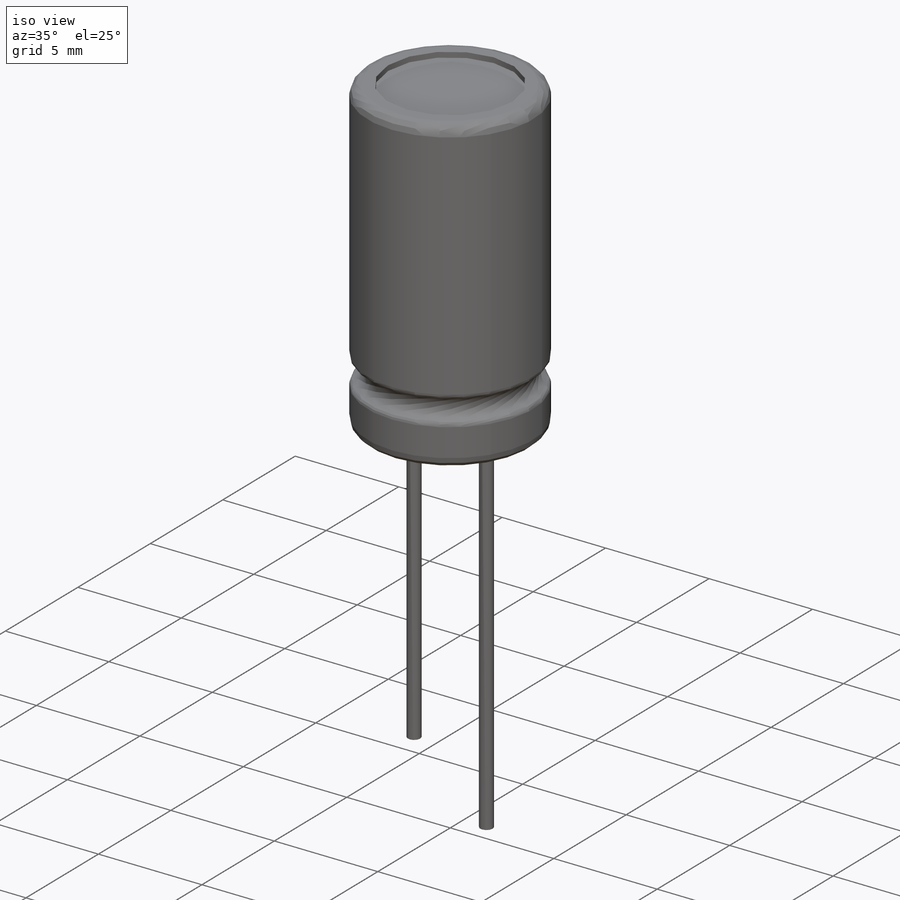
[diagram: iso view]
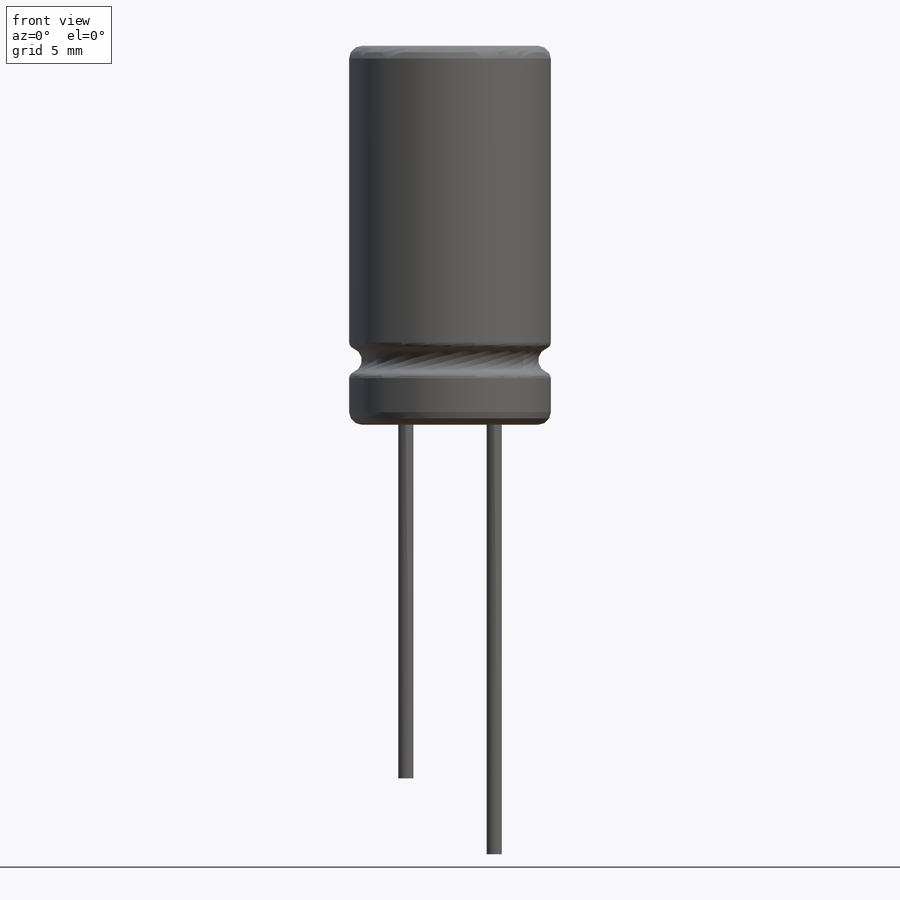
[diagram: front view]
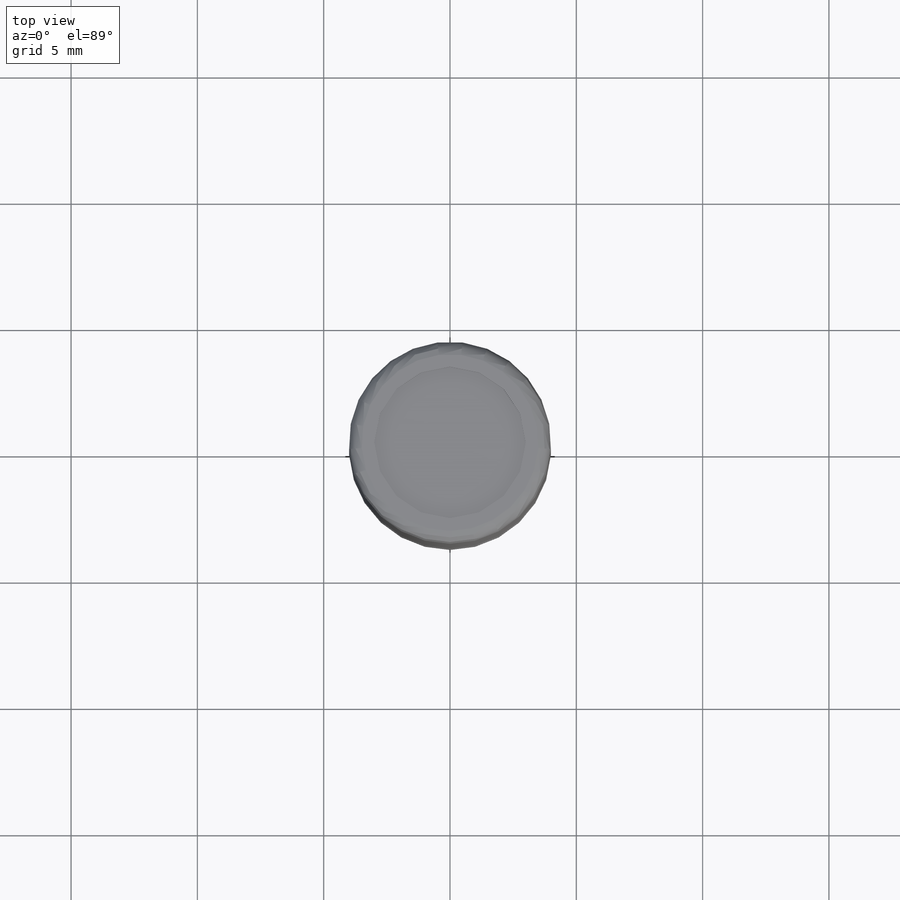
[diagram: top view]
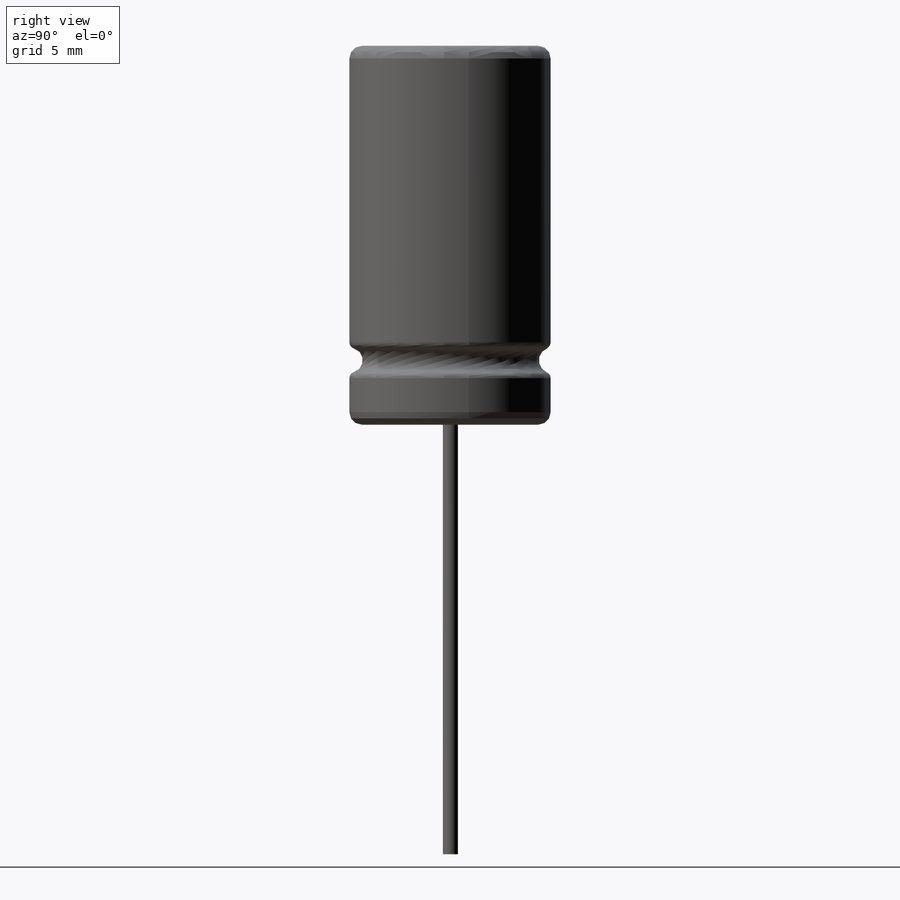
[diagram: right view]
SOLIDWORKS PART (.sldprt)
format: sldprt  version: not decoded by parser v0  size: 174,592 bytes
history: native  units: mm
features: sketch x6, cut_extrude x3, extrude x2, fillet x2, material x1, cut_revolve x1 (+15 scaffold rows collapsed)
feature tree (30):
  scaffold x15  (default folders/planes/origin — collapsed)
  material  "Material <not specified>"
  sketch  "Sketch1"  dims[D1=8.0mm]
  extrude  "Base-Extrude"  Depth=15mm
  sketch  "Sketch2"  dims[D1=0.5mm]
  cut_revolve  "Cut-Revolve1"  Angle=360deg
  fillet  "Fillet1"  Radius=0.5mm
  fillet  "Fillet2"  Radius=0.25mm
  sketch  "Sketch4"  dims[D1=6.0mm]
  cut_extrude  "Cut-Extrude1"  Depth=0.25mm
  sketch  "Sketch3"  dims[c1.D1=0.6mm c1.D2=0.6mm c1.D3=0.6mm c2.D2=1.75mm c2.D3=3.5mm]
  extrude  "Boss-Extrude1"  Depth=17.25mm
  sketch  "Sketch5"  dims[D1=0.0mm]
  cut_extrude  "Cut-Extrude2"  Depth=3mm
  sketch  "Sketch6"  dims[D1=6.0mm]
  cut_extrude  "Cut-Extrude3"  Depth=0.25mm
decode coverage: 14 of 14 modeling features carry decoded parameters
note: suppression state not decoded; provenance and decode notes live in map.json
